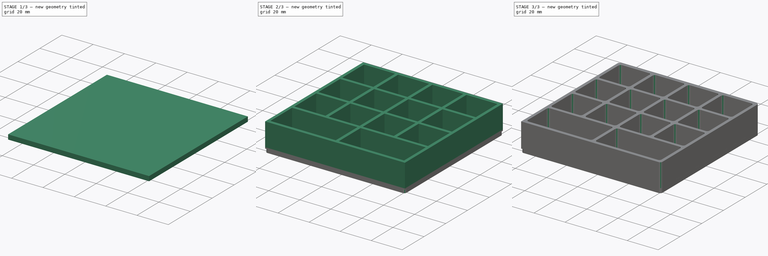
[diagram: build sequence overview — one tinted view per stage of 3, left to right]
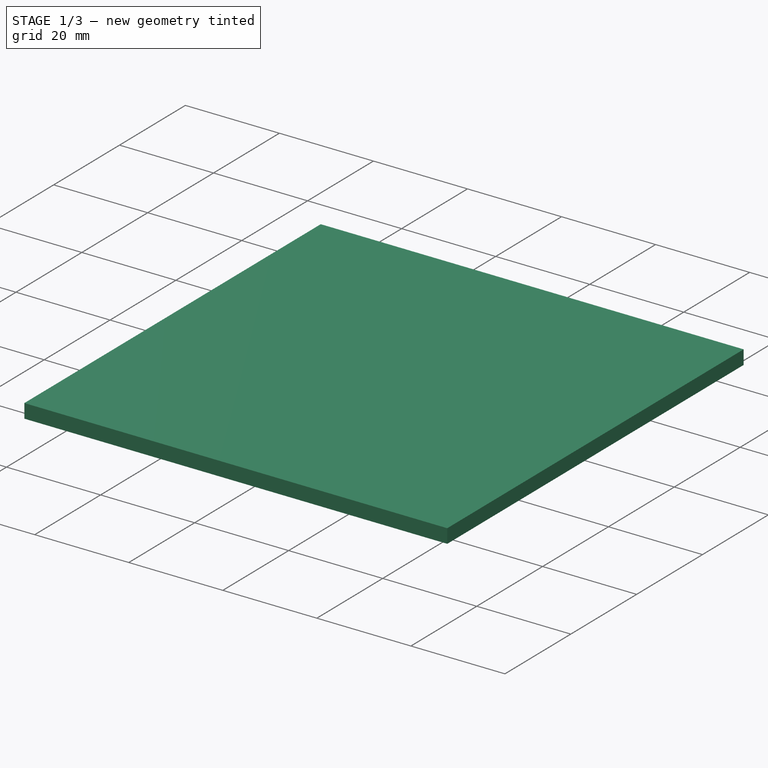
[diagram: stage 1 of 3 — iso view after this stage's code; geometry added in this stage tinted green]
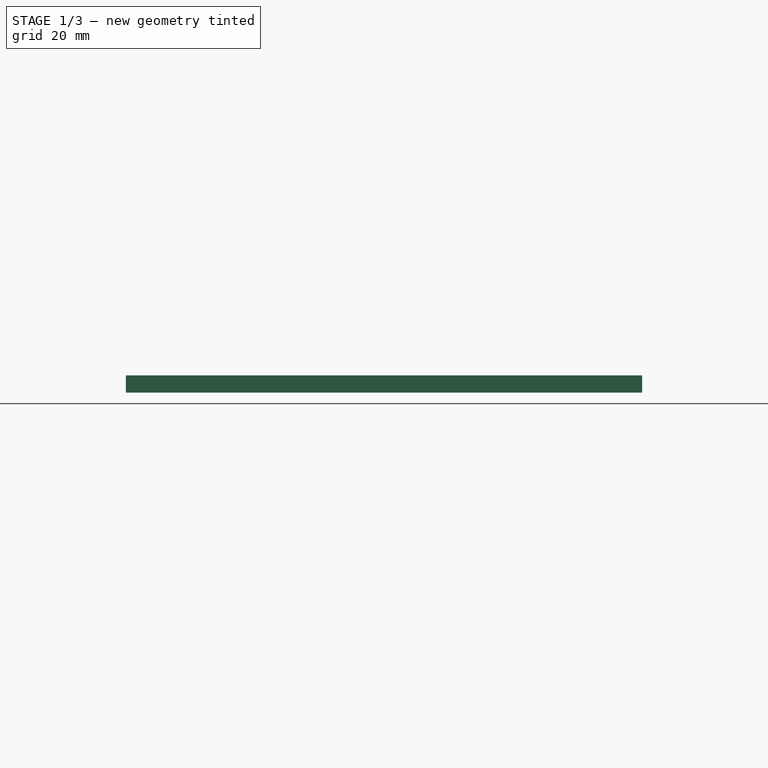
[diagram: stage 1 of 3 — front view after this stage's code; geometry added in this stage tinted green]
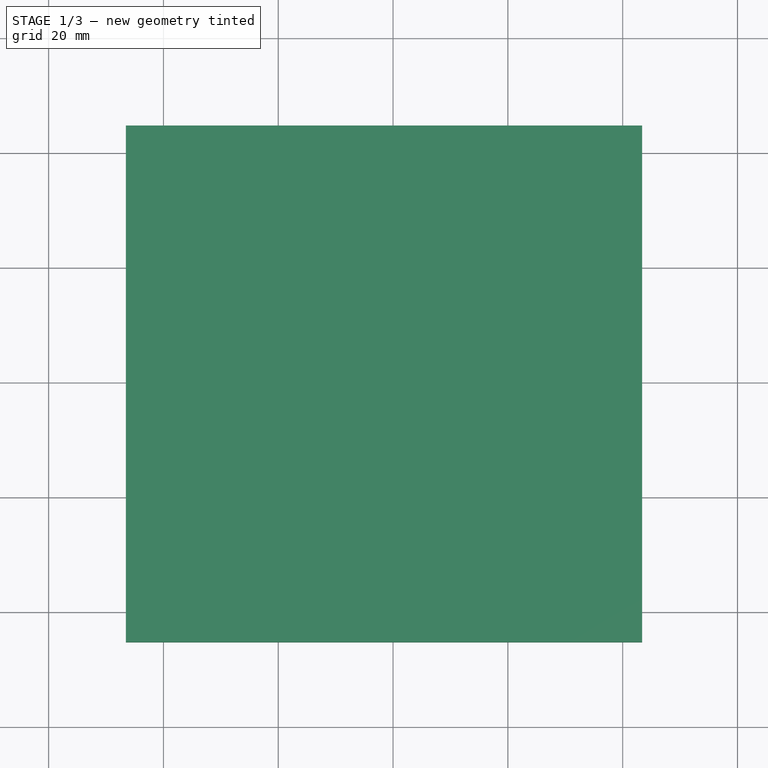
[diagram: stage 1 of 3 — top view after this stage's code; geometry added in this stage tinted green]
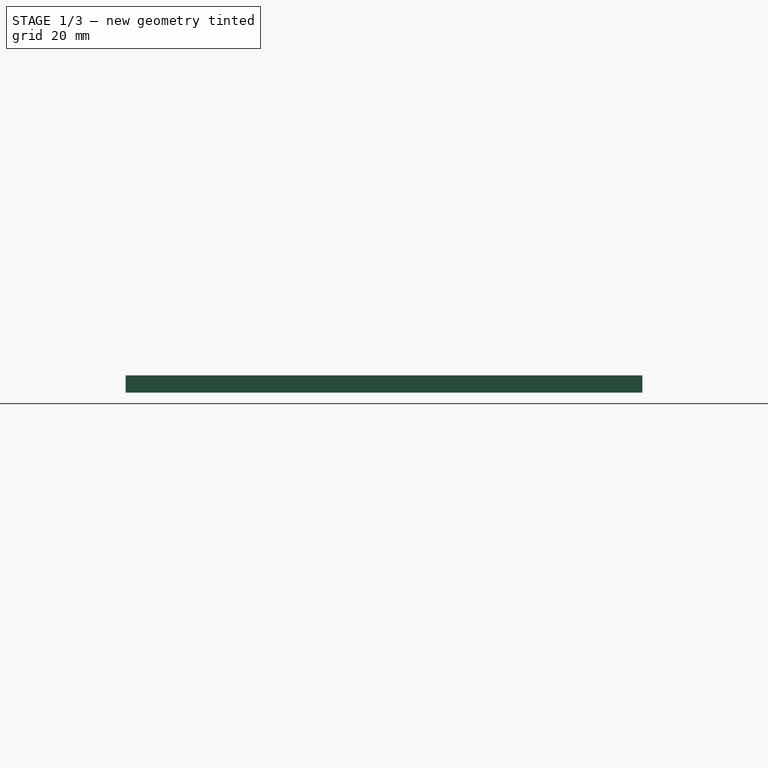
[diagram: stage 1 of 3 — right view after this stage's code; geometry added in this stage tinted green]
FCSTD DOCUMENT  (FreeCAD 0.19R24267 +99 (Git))
Label: 原件盒
License: All rights reserved
LicenseURL: http://en.wikipedia.org/wiki/All_rights_reserved
objects: Sketcher::SketchObject×4, PartDesign::Pad×4, PartDesign::Fillet×3, PartDesign::Body×2
note: 20 computed .brp shape members not serialized (recipe doc carries the construction recipe); baked Part::Feature solids carry a one-line shape summary decoded from their .brp

FEATURE [Sketcher::SketchObject] Sketch002
  FullyConstrained = false
  MapMode = 5
  Support = -> [XY_Plane001]
  sketch-geometry (4):
    g0: LineSegment StartX=-46.5431 StartY=44.7849 StartZ=0 EndX=43.3915 EndY=44.7849 EndZ=0
    g1: LineSegment StartX=43.3915 StartY=44.7849 StartZ=0 EndX=43.3915 EndY=-45.2323 EndZ=0
    g2: LineSegment StartX=43.3915 StartY=-45.2323 StartZ=0 EndX=-46.5431 EndY=-45.2323 EndZ=0
    g3: LineSegment StartX=-46.5431 StartY=-45.2323 StartZ=0 EndX=-46.5431 EndY=44.7849 EndZ=0
  constraints (8):
    c: Coincident(g0,g1)
    c: Coincident(g1,g2)
    c: Coincident(g2,g3)
    c: Coincident(g3,g0)
    c: Horizontal(g0)
    c: Horizontal(g2)
    c: Vertical(g1)
    c: Vertical(g3)
FEATURE [PartDesign::Pad] Pad002
  Direction = (1,1,1)
  Length = 1
  Length2 = 100
  Profile = -> Sketch002
  Reversed = true
  Type = 0
FEATURE [Sketcher::SketchObject] Sketch003
  ExternalGeometry = -> [Pad002]
  FullyConstrained = false
  MapMode = 5
  Placement = pos=(0,0,-1) rot=(1,0,0;3.14159rad)
  Support = -> [Pad002]
  sketch-geometry (33):
    g0: LineSegment StartX=-46.5431 StartY=45.2323 StartZ=0 EndX=43.3915 EndY=45.2323 EndZ=0
    g1: LineSegment StartX=43.3915 StartY=45.2323 StartZ=0 EndX=43.3915 EndY=-44.7849 EndZ=0
    g2: LineSegment StartX=43.3915 StartY=-44.7849 StartZ=0 EndX=-46.5431 EndY=-44.7849 EndZ=0
    g3: LineSegment StartX=-46.5431 StartY=-44.7849 StartZ=0 EndX=-46.5431 EndY=45.2323 EndZ=0
    g4: Circle CenterX=-23.6071 CenterY=33.2359 CenterZ=0 NormalX=0 NormalY=0 NormalZ=1 AngleXU=0 Radius=5.5
    g5: Circle CenterX=20.3929 CenterY=33.2359 CenterZ=0 NormalX=0 NormalY=0 NormalZ=1 AngleXU=0 Radius=5.5
    g6: Circle CenterX=-34.5313 CenterY=11.2359 CenterZ=0 NormalX=0 NormalY=0 NormalZ=1 AngleXU=0 Radius=5.5
    g7: Circle CenterX=-12.5313 CenterY=11.2359 CenterZ=0 NormalX=0 NormalY=0 NormalZ=1 AngleXU=0 Radius=5.5
    g8: Circle CenterX=9.46874 CenterY=11.2359 CenterZ=0 NormalX=0 NormalY=0 NormalZ=1 AngleXU=0 Radius=5.5
    g9: Circle CenterX=31.4687 CenterY=11.2359 CenterZ=0 NormalX=0 NormalY=0 NormalZ=1 AngleXU=0 Radius=5.5
    g10: LineSegment StartX=-34.5313 StartY=11.2359 StartZ=0 EndX=-12.5313 EndY=11.2359 EndZ=0
    g11: LineSegment StartX=-12.5313 StartY=11.2359 StartZ=0 EndX=9.46874 EndY=11.2359 EndZ=0
    g12: LineSegment StartX=9.46874 StartY=11.2359 StartZ=0 EndX=31.4687 EndY=11.2359 EndZ=0
    g13: LineSegment StartX=20.3929 StartY=11.2359 StartZ=0 EndX=20.3929 EndY=33.2359 EndZ=0
    g14: LineSegment StartX=-23.6071 StartY=11.2359 StartZ=0 EndX=-23.6071 EndY=33.2359 EndZ=0
    g15: LineSegment StartX=-23.6071 StartY=33.2359 StartZ=0 EndX=20.3929 EndY=33.2359 EndZ=0
    g16: Circle CenterX=-34.5313 CenterY=-10.7641 CenterZ=0 NormalX=0 NormalY=0 NormalZ=1 AngleXU=0 Radius=5.5
    g17: Circle CenterX=-12.5313 CenterY=-10.7641 CenterZ=0 NormalX=0 NormalY=0 NormalZ=1 AngleXU=0 Radius=5.5
    g18: Circle CenterX=9.44414 CenterY=-10.7641 CenterZ=0 NormalX=0 NormalY=0 NormalZ=1 AngleXU=0 Radius=5.5
    g19: Circle CenterX=31.4195 CenterY=-10.7641 CenterZ=0 NormalX=0 NormalY=0 NormalZ=1 AngleXU=0 Radius=5.5
    g20: LineSegment StartX=-34.5313 StartY=-10.7641 StartZ=0 EndX=-12.5313 EndY=-10.7641 EndZ=0
    g21: LineSegment StartX=-12.5313 StartY=-10.7641 StartZ=0 EndX=9.44414 EndY=-10.7641 EndZ=0
    g22: LineSegment StartX=9.44414 StartY=-10.7641 StartZ=0 EndX=31.4195 EndY=-10.7641 EndZ=0
    g23: Circle CenterX=-34.5313 CenterY=-32.7641 CenterZ=0 NormalX=0 NormalY=0 NormalZ=1 AngleXU=0 Radius=5.5
    g24: Circle CenterX=-12.5313 CenterY=-32.7641 CenterZ=0 NormalX=0 NormalY=0 NormalZ=1 AngleXU=0 Radius=5.5
    g25: Circle CenterX=9.40967 CenterY=-32.7641 CenterZ=0 NormalX=0 NormalY=0 NormalZ=1 AngleXU=0 Radius=5.5
    g26: Circle CenterX=31.3506 CenterY=-32.7641 CenterZ=0 NormalX=0 NormalY=0 NormalZ=1 AngleXU=0 Radius=5.5
    g27: LineSegment StartX=-34.5313 StartY=-32.7641 StartZ=0 EndX=-12.5313 EndY=-32.7641 EndZ=0
    g28: LineSegment StartX=-12.5313 StartY=-32.7641 StartZ=0 EndX=9.40967 EndY=-32.7641 EndZ=0
    g29: LineSegment StartX=9.40967 StartY=-32.7641 StartZ=0 EndX=31.3506 EndY=-32.7641 EndZ=0
    g30: LineSegment StartX=-12.5313 StartY=11.2359 StartZ=0 EndX=-12.5313 EndY=-10.7641 EndZ=0
    g31: LineSegment StartX=-12.5313 StartY=-10.7641 StartZ=0 EndX=-12.3652 EndY=-11.3921 EndZ=0
    g32: LineSegment StartX=-34.5313 StartY=-10.7641 StartZ=0 EndX=-34.5313 EndY=-32.7641 EndZ=0
  constraints (66):
    c: Coincident(g0,g1)
    c: Coincident(g1,g2)
    c: Coincident(g2,g3)
    c: Coincident(g3,g0)
    c: Horizontal(g2)
    c: Vertical(g1)
    c: Coincident(g0,g-4)
    c: Coincident(g0,g-4)
    c: Coincident(g2,g-3)
    c: Diameter(g4) = 11
    c: Equal(g4,g5) = 11
    c: Equal(g4,g6) = 11
    c: Coincident(g10,g6)
    c: Coincident(g10,g7)
    c: Horizontal(g10)
    c: Coincident(g10,g11)
    c: Coincident(g11,g8)
    c: Coincident(g11,g12)
    c: Coincident(g12,g9)
    c: Horizontal(g12)
    c: PointOnObject(g13,g12)
    c: Coincident(g13,g5)
    c: Vertical(g13)
    c: PointOnObject(g14,g10)
    c: Coincident(g14,g4)
    c: Vertical(g14)
    c: Horizontal(g11)
    c: Equal(g10,g14)
    c: Equal(g14,g11)
    c: Equal(g11,g12)
    c: Equal(g12,g13)
    c: Distance(g10) = 22
    c: Coincident(g15,g4)
    c: Coincident(g15,g5)
    c: Distance(g15) = 44
    c: Coincident(g20,g16)
    c: Coincident(g20,g17)
    c: Horizontal(g20)
    c: Coincident(g20,g21)
    c: Coincident(g21,g18)
    c: Coincident(g21,g22)
    c: Coincident(g22,g19)
    c: Horizontal(g22)
    c: Horizontal(g21)
    c: Equal(g21,g22)
    c: Equal(g10,g20) = 22
    c: Coincident(g27,g23)
    c: Coincident(g27,g24)
    c: Horizontal(g27)
    c: Coincident(g27,g28)
    c: Coincident(g28,g25)
    c: Coincident(g28,g29)
    c: Coincident(g29,g26)
    c: Horizontal(g29)
    c: Horizontal(g28)
    c: Equal(g28,g29)
    c: Coincident(g30,g7)
    c: Coincident(g30,g17)
    c: Vertical(g30)
    c: Coincident(g30,g31)
    c: Vertical(g16,g23)
    c: Equal(g27,g20)
    c: Coincident(g32,g16)
    c: Coincident(g32,g23)
    c: Equal(g32,g30)
    c: Equal(g30,g10)
FEATURE [PartDesign::Pad] Pad003
  BaseFeature = -> Pad002
  Direction = (1,1,1)
  Length = 2
  Length2 = 100
  Profile = -> Sketch003
  Type = 0
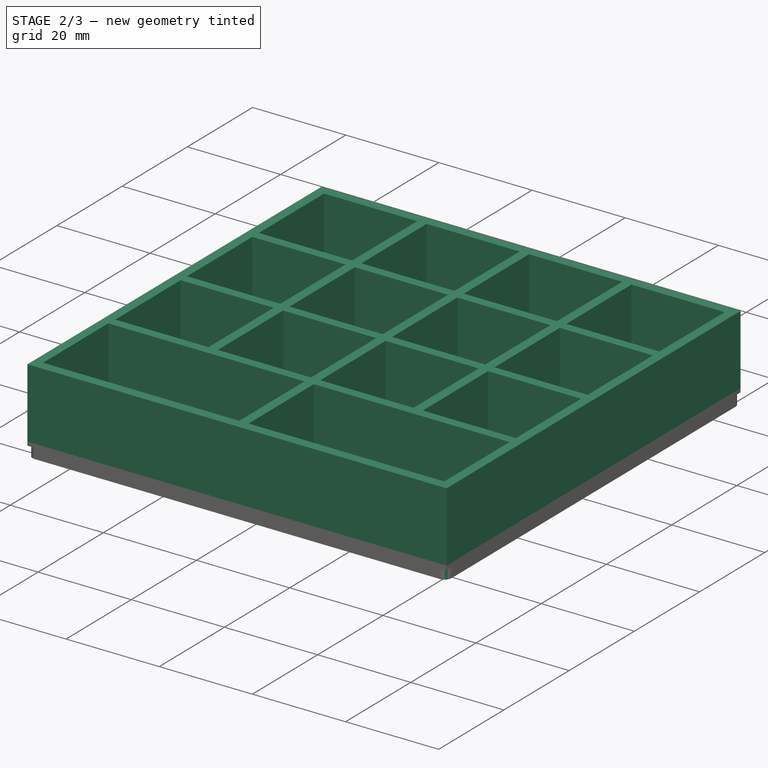
[diagram: stage 2 of 3 — iso view after this stage's code; geometry added in this stage tinted green]
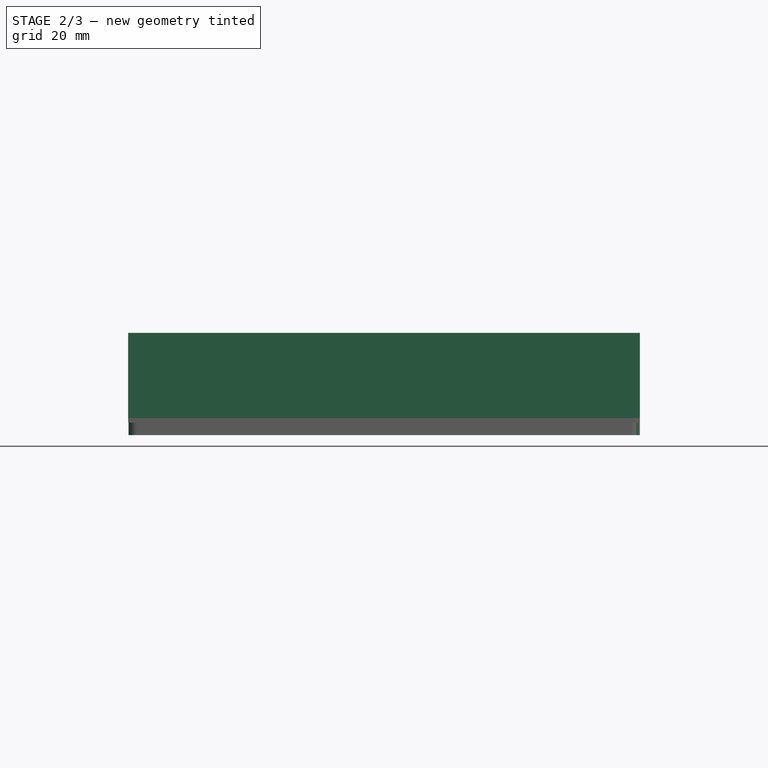
[diagram: stage 2 of 3 — front view after this stage's code; geometry added in this stage tinted green]
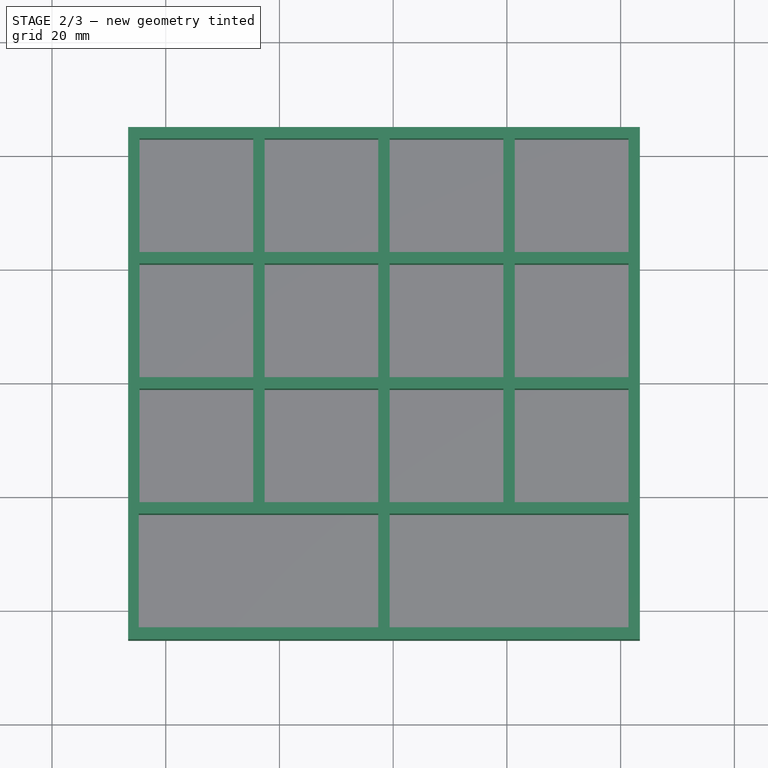
[diagram: stage 2 of 3 — top view after this stage's code; geometry added in this stage tinted green]
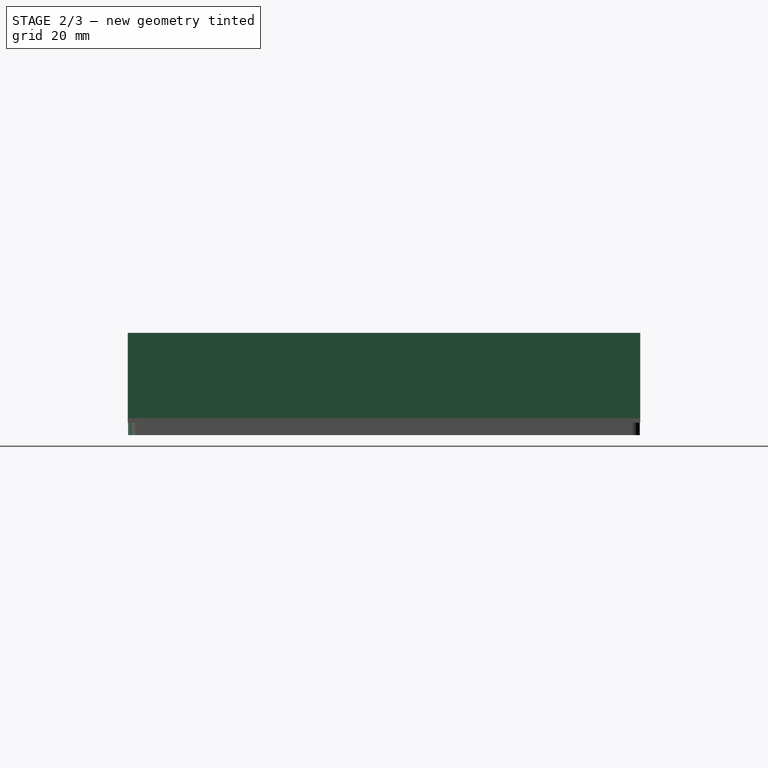
[diagram: stage 2 of 3 — right view after this stage's code; geometry added in this stage tinted green]
FEATURE [Sketcher::SketchObject] Sketch
  FullyConstrained = false
  MapMode = 5
  Support = -> [XY_Plane]
  sketch-geometry (76):
    g0: LineSegment StartX=-44.6175 StartY=42.8492 StartZ=0 EndX=-24.6175 EndY=42.8492 EndZ=0
    g1: LineSegment StartX=-24.6175 StartY=42.8492 StartZ=0 EndX=-24.6175 EndY=22.8492 EndZ=0
    g2: LineSegment StartX=-24.6175 StartY=22.8492 StartZ=0 EndX=-44.6175 EndY=22.8492 EndZ=0
    g3: LineSegment StartX=-44.6175 StartY=22.8492 StartZ=0 EndX=-44.6175 EndY=42.8492 EndZ=0
    g4: LineSegment StartX=-44.6175 StartY=20.8492 StartZ=0 EndX=-24.6175 EndY=20.8492 EndZ=0
    g5: LineSegment StartX=-24.6175 StartY=20.8492 StartZ=0 EndX=-24.6175 EndY=0.849179 EndZ=0
    g6: LineSegment StartX=-24.6175 StartY=0.849179 StartZ=0 EndX=-44.6175 EndY=0.849179 EndZ=0
    g7: LineSegment StartX=-44.6175 StartY=0.849179 StartZ=0 EndX=-44.6175 EndY=20.8492 EndZ=0
    g8: LineSegment StartX=-22.6175 StartY=42.8492 StartZ=0 EndX=-2.61746 EndY=42.8492 EndZ=0
    g9: LineSegment StartX=-2.61746 StartY=42.8492 StartZ=0 EndX=-2.61746 EndY=22.8492 EndZ=0
    g10: LineSegment StartX=-2.61746 StartY=22.8492 StartZ=0 EndX=-22.6175 EndY=22.8492 EndZ=0
    g11: LineSegment StartX=-22.6175 StartY=22.8492 StartZ=0 EndX=-22.6175 EndY=42.8492 EndZ=0
    g12: LineSegment StartX=-22.6175 StartY=20.8492 StartZ=0 EndX=-2.61746 EndY=20.8492 EndZ=0
    g13: LineSegment StartX=-2.61746 StartY=20.8492 StartZ=0 EndX=-2.61746 EndY=0.849179 EndZ=0
    g14: LineSegment StartX=-2.61746 StartY=0.849179 StartZ=0 EndX=-22.6175 EndY=0.849179 EndZ=0
    g15: LineSegment StartX=-22.6175 StartY=0.849179 StartZ=0 EndX=-22.6175 EndY=20.8492 EndZ=0
    g16: LineSegment StartX=-24.6175 StartY=22.8492 StartZ=0 EndX=-22.6175 EndY=22.8492 EndZ=0
    g17: LineSegment StartX=-22.6175 StartY=22.8492 StartZ=0 EndX=-22.6175 EndY=20.8492 EndZ=0
    g18: LineSegment StartX=-22.6175 StartY=20.8492 StartZ=0 EndX=-24.6175 EndY=20.8492 EndZ=0
    g19: LineSegment StartX=-24.6175 StartY=20.8492 StartZ=0 EndX=-24.6175 EndY=22.8492 EndZ=0
    g20: LineSegment StartX=-0.617456 StartY=42.8492 StartZ=0 EndX=19.3825 EndY=42.8492 EndZ=0
    g21: LineSegment StartX=19.3825 StartY=42.8492 StartZ=0 EndX=19.3825 EndY=22.8492 EndZ=0
    g22: LineSegment StartX=19.3825 StartY=22.8492 StartZ=0 EndX=-0.617456 EndY=22.8492 EndZ=0
    g23: LineSegment StartX=-0.617456 StartY=22.8492 StartZ=0 EndX=-0.617456 EndY=42.8492 EndZ=0
    g24: LineSegment StartX=-0.617456 StartY=20.8492 StartZ=0 EndX=19.3825 EndY=20.8492 EndZ=0
    g25: LineSegment StartX=19.3825 StartY=20.8492 StartZ=0 EndX=19.3825 EndY=0.849179 EndZ=0
    g26: LineSegment StartX=19.3825 StartY=0.849179 StartZ=0 EndX=-0.617456 EndY=0.849179 EndZ=0
    g27: LineSegment StartX=-0.617456 StartY=0.849179 StartZ=0 EndX=-0.617456 EndY=20.8492 EndZ=0
    g28: LineSegment StartX=21.3825 StartY=42.8492 StartZ=0 EndX=41.3825 EndY=42.8492 EndZ=0
    g29: LineSegment StartX=41.3825 StartY=42.8492 StartZ=0 EndX=41.3825 EndY=22.8492 EndZ=0
    g30: LineSegment StartX=41.3825 StartY=22.8492 StartZ=0 EndX=21.3825 EndY=22.8492 EndZ=0
    g31: LineSegment StartX=21.3825 StartY=22.8492 StartZ=0 EndX=21.3825 EndY=42.8492 EndZ=0
    g32: LineSegment StartX=21.3825 StartY=20.8492 StartZ=0 EndX=41.3825 EndY=20.8492 EndZ=0
    g33: LineSegment StartX=41.3825 StartY=20.8492 StartZ=0 EndX=41.3825 EndY=0.849179 EndZ=0
    g34: LineSegment StartX=41.3825 StartY=0.849179 StartZ=0 EndX=21.3825 EndY=0.849179 EndZ=0
    g35: LineSegment StartX=21.3825 StartY=0.849179 StartZ=0 EndX=21.3825 EndY=20.8492 EndZ=0
    g36: LineSegment StartX=19.3825 StartY=22.8492 StartZ=0 EndX=21.3825 EndY=22.8492 EndZ=0
    g37: LineSegment StartX=21.3825 StartY=22.8492 StartZ=0 EndX=21.3825 EndY=20.8492 EndZ=0
    g38: LineSegment StartX=21.3825 StartY=20.8492 StartZ=0 EndX=19.3825 EndY=20.8492 EndZ=0
    g39: LineSegment StartX=19.3825 StartY=20.8492 StartZ=0 EndX=19.3825 EndY=22.8492 EndZ=0
    g40: LineSegment StartX=-2.61746 StartY=22.8492 StartZ=0 EndX=-0.617456 EndY=22.8492 EndZ=0
    g41: LineSegment StartX=-44.6175 StartY=-1.15082 StartZ=0 EndX=-24.6175 EndY=-1.15082 EndZ=0
    g42: LineSegment StartX=-24.6175 StartY=-1.15082 StartZ=0 EndX=-24.6175 EndY=-21.1508 EndZ=0
    g43: LineSegment StartX=-24.6175 StartY=-21.1508 StartZ=0 EndX=-44.6175 EndY=-21.1508 EndZ=0
    g44: LineSegment StartX=-44.6175 StartY=-21.1508 StartZ=0 EndX=-44.6175 EndY=-1.15082 EndZ=0
    g45: LineSegment StartX=-22.6175 StartY=-1.15082 StartZ=0 EndX=-2.61746 EndY=-1.15082 EndZ=0
    g46: LineSegment StartX=-2.61746 StartY=-1.15082 StartZ=0 EndX=-2.61746 EndY=-21.1508 EndZ=0
    g47: LineSegment StartX=-2.61746 StartY=-21.1508 StartZ=0 EndX=-22.6175 EndY=-21.1508 EndZ=0
    g48: LineSegment StartX=-22.6175 StartY=-21.1508 StartZ=0 EndX=-22.6175 EndY=-1.15082 EndZ=0
    g49: LineSegment StartX=-24.6175 StartY=-21.1508 StartZ=0 EndX=-22.6175 EndY=-21.1508 EndZ=0
    g50: LineSegment StartX=-0.617456 StartY=-1.15082 StartZ=0 EndX=19.3825 EndY=-1.15082 EndZ=0
    g51: LineSegment StartX=19.3825 StartY=-1.15082 StartZ=0 EndX=19.3825 EndY=-21.1508 EndZ=0
    g52: LineSegment StartX=19.3825 StartY=-21.1508 StartZ=0 EndX=-0.617456 EndY=-21.1508 EndZ=0
    g53: LineSegment StartX=-0.617456 StartY=-21.1508 StartZ=0 EndX=-0.617456 EndY=-1.15082 EndZ=0
    g54: LineSegment StartX=21.3825 StartY=-1.15082 StartZ=0 EndX=41.3825 EndY=-1.15082 EndZ=0
    g55: LineSegment StartX=41.3825 StartY=-1.15082 StartZ=0 EndX=41.3825 EndY=-21.1508 EndZ=0
    g56: LineSegment StartX=41.3825 StartY=-21.1508 StartZ=0 EndX=21.3825 EndY=-21.1508 EndZ=0
    g57: LineSegment StartX=21.3825 StartY=-21.1508 StartZ=0 EndX=21.3825 EndY=-1.15082 EndZ=0
    g58: LineSegment StartX=19.3825 StartY=-21.1508 StartZ=0 EndX=21.3825 EndY=-21.1508 EndZ=0
    g59: LineSegment StartX=21.3825 StartY=-21.1508 StartZ=0 EndX=21.3825 EndY=-23.2642 EndZ=0
    g60: LineSegment StartX=-2.61746 StartY=-21.1508 StartZ=0 EndX=-0.617456 EndY=-21.1508 EndZ=0
    g61: LineSegment StartX=-2.61746 StartY=0.849179 StartZ=0 EndX=-2.61746 EndY=-1.15082 EndZ=0
    g62: LineSegment StartX=-46.6175 StartY=44.8492 StartZ=0 EndX=43.3825 EndY=44.8492 EndZ=0
    g63: LineSegment StartX=43.3825 StartY=44.8492 StartZ=0 EndX=43.3825 EndY=-45.2642 EndZ=0
    g64: LineSegment StartX=43.3825 StartY=-45.2642 StartZ=0 EndX=-46.6175 EndY=-45.2642 EndZ=0
    g65: LineSegment StartX=-46.6175 StartY=-45.2642 StartZ=0 EndX=-46.6175 EndY=44.8492 EndZ=0
    g66: LineSegment StartX=-44.7338 StartY=-23.1508 StartZ=0 EndX=-2.61746 EndY=-23.1508 EndZ=0
    g67: LineSegment StartX=-2.61746 StartY=-23.1508 StartZ=0 EndX=-2.61746 EndY=-43.1508 EndZ=0
    g68: LineSegment StartX=-2.61746 StartY=-43.1508 StartZ=0 EndX=-44.7338 EndY=-43.1508 EndZ=0
    g69: LineSegment StartX=-44.7338 StartY=-43.1508 StartZ=0 EndX=-44.7338 EndY=-23.1508 EndZ=0
    g70: LineSegment StartX=-0.617456 StartY=-23.1508 StartZ=0 EndX=41.3825 EndY=-23.1508 EndZ=0
    g71: LineSegment StartX=41.3825 StartY=-23.1508 StartZ=0 EndX=41.3825 EndY=-43.1508 EndZ=0
    g72: LineSegment StartX=41.3825 StartY=-43.1508 StartZ=0 EndX=-0.617456 EndY=-43.1508 EndZ=0
    g73: LineSegment StartX=-0.617456 StartY=-43.1508 StartZ=0 EndX=-0.617456 EndY=-23.1508 EndZ=0
    g74: LineSegment StartX=-2.61746 StartY=-23.1508 StartZ=0 EndX=-0.617456 EndY=-23.1508 EndZ=0
    g75: LineSegment StartX=-2.61746 StartY=-21.1508 StartZ=0 EndX=-2.61746 EndY=-23.1508 EndZ=0
  constraints (208):
    c: Coincident(g0,g1)
    c: Coincident(g1,g2)
    c: Coincident(g2,g3)
    c: Coincident(g3,g0)
    c: Horizontal(g0)
    c: Horizontal(g2)
    c: Vertical(g1)
    c: Vertical(g3)
    c: Equal(g0,g3)
    c: Distance(g0) = 20
    c: Coincident(g4,g5)
    c: Coincident(g5,g6)
    c: Coincident(g6,g7)
    c: Coincident(g7,g4)
    c: Horizontal(g4)
    c: Horizontal(g6)
    c: Vertical(g5)
    c: Vertical(g7)
    c: Equal(g4,g7)
    c: Equal(g0,g4) = 20
    c: Coincident(g8,g9)
    c: Coincident(g9,g10)
    c: Coincident(g10,g11)
    c: Coincident(g11,g8)
    c: Horizontal(g8)
    c: Horizontal(g10)
    c: Vertical(g9)
    c: Vertical(g11)
    c: Equal(g8,g11)
    c: Equal(g0,g8) = 20
    c: Coincident(g12,g13)
    c: Coincident(g13,g14)
    c: Coincident(g14,g15)
    c: Coincident(g15,g12)
    c: Horizontal(g12)
    c: Horizontal(g14)
    c: Vertical(g13)
    c: Vertical(g15)
    c: Equal(g12,g15)
    c: Equal(g8,g12) = 20
    c: Coincident(g16,g17)
    c: Coincident(g17,g18)
    c: Coincident(g18,g19)
    c: Coincident(g19,g16)
    c: Horizontal(g16)
    c: Horizontal(g18)
    c: Vertical(g17)
    c: Vertical(g19)
    c: Coincident(g16,g1)
    c: Coincident(g17,g12)
    c: Coincident(g10,g16)
    c: Coincident(g4,g18)
    c: Equal(g16,g19)
    c: Distance(g16) = 2
    c: Coincident(g20,g21)
    c: Coincident(g21,g22)
    c: Coincident(g22,g23)
    c: Coincident(g23,g20)
    c: Horizontal(g20)
    c: Horizontal(g22)
    c: Vertical(g21)
    c: Vertical(g23)
    c: Equal(g20,g23)
    c: Equal(g0,g20) = 20
    c: Coincident(g24,g25)
    c: Coincident(g25,g26)
    c: Coincident(g26,g27)
    c: Coincident(g27,g24)
    c: Horizontal(g24)
    c: Horizontal(g26)
    c: Vertical(g25)
    c: Vertical(g27)
    c: Equal(g24,g27)
    c: Equal(g20,g24) = 20
    c: Coincident(g28,g29)
    c: Coincident(g29,g30)
    c: Coincident(g30,g31)
    c: Coincident(g31,g28)
    c: Horizontal(g28)
    c: Horizontal(g30)
    c: Vertical(g29)
    c: Vertical(g31)
    c: Equal(g28,g31)
    c: Equal(g20,g28) = 20
    c: Coincident(g32,g33)
    c: Coincident(g33,g34)
    c: Coincident(g34,g35)
    c: Coincident(g35,g32)
    c: Horizontal(g32)
    c: Horizontal(g34)
    c: Vertical(g33)
    c: Vertical(g35)
    c: Equal(g32,g35)
    c: Equal(g28,g32) = 20
    c: Coincident(g36,g37)
    c: Coincident(g37,g38)
    c: Coincident(g38,g39)
    c: Coincident(g39,g36)
    c: Horizontal(g36)
    c: Horizontal(g38)
    c: Vertical(g37)
    c: Vertical(g39)
    c: Coincident(g36,g21)
    c: Coincident(g37,g32)
    c: Coincident(g30,g36)
    c: Coincident(g24,g38)
    c: Equal(g36,g39)
    c: Equal(g16,g36) = 2
    c: Horizontal(g40)
    c: Coincident(g40,g22)
    c: Coincident(g40,g9)
    c: Distance(g40) = 2
    c: Coincident(g41,g42)
    c: Coincident(g42,g43)
    c: Coincident(g43,g44)
    c: Coincident(g44,g41)
    c: Horizontal(g41)
    c: Horizontal(g43)
    c: Vertical(g42)
    c: Vertical(g44)
    c: Equal(g41,g44)
    c: Equal(g0,g41) = 20
    c: Coincident(g45,g46)
    c: Coincident(g46,g47)
    c: Coincident(g47,g48)
    c: Coincident(g48,g45)
    c: Horizontal(g45)
    c: Horizontal(g47)
    c: Vertical(g46)
    c: Vertical(g48)
    c: Equal(g45,g48)
    c: Equal(g41,g45) = 20
    c: Horizontal(g49)
    c: Coincident(g49,g42)
    c: Coincident(g47,g49)
    c: Equal(g16,g49) = 2
    c: Coincident(g50,g51)
    c: Coincident(g51,g52)
    c: Coincident(g52,g53)
    c: Coincident(g53,g50)
    c: Horizontal(g50)
    c: Horizontal(g52)
    c: Vertical(g51)
    c: Vertical(g53)
    c: Equal(g50,g53)
    c: Equal(g41,g50) = 20
    c: Coincident(g54,g55)
    c: Coincident(g55,g56)
    c: Coincident(g56,g57)
    c: Coincident(g57,g54)
    c: Horizontal(g54)
    c: Horizontal(g56)
    c: Vertical(g55)
    c: Vertical(g57)
    c: Equal(g54,g57)
    c: Equal(g50,g54) = 20
    c: Coincident(g58,g59)
    c: Horizontal(g58)
    c: Vertical(g59)
    c: Coincident(g58,g51)
    c: Coincident(g56,g58)
    c: Equal(g49,g58) = 2
    c: Horizontal(g60)
    c: Coincident(g60,g52)
    c: Coincident(g60,g46)
    c: Equal(g40,g60) = 2
    c: Coincident(g61,g13)
    c: Coincident(g61,g45)
    c: Vertical(g61)
    c: Distance(g61) = 2
    c: Coincident(g62,g63)
    c: Coincident(g63,g64)
    c: Coincident(g64,g65)
    c: Coincident(g65,g62)
    c: Horizontal(g62)
    c: Horizontal(g64)
    c: Vertical(g63)
    c: Vertical(g65)
    c: Distance(g0,g62) = 2
    c: Coincident(g66,g67)
    c: Coincident(g67,g68)
    c: Coincident(g68,g69)
    c: Coincident(g69,g66)
    c: Horizontal(g66)
    c: Horizontal(g68)
    c: Vertical(g67)
    c: Vertical(g69)
    c: Equal(g69,g44)
    c: Coincident(g70,g71)
    c: Coincident(g71,g72)
    c: Coincident(g72,g73)
    c: Coincident(g73,g70)
    c: Horizontal(g70)
    c: Horizontal(g72)
    c: Vertical(g71)
    c: Vertical(g73)
    c: Coincident(g74,g66)
    c: Coincident(g74,g70)
    c: Coincident(g75,g46)
    c: Coincident(g75,g66)
    c: Horizontal(g74)
    c: Vertical(g75)
    c: Equal(g75,g74)
    c: Equal(g74,g61)
    c: Distance(g43,g65) = 2
    c: Distance(g28,g63) = 2
    c: Vertical(g70,g55)
    c: Horizontal(g67,g72)
FEATURE [PartDesign::Pad] Pad
  Direction = (1,1,1)
  Length = 15
  Length2 = 100
  Profile = -> Sketch
  Type = 0
FEATURE [Sketcher::SketchObject] Sketch001
  ExternalGeometry = -> [Pad]
  FullyConstrained = true
  MapMode = 5
  Placement = pos=(0,0,0) rot=(1,0,0;3.14159rad)
  Support = -> [Pad]
  sketch-geometry (4):
    g0: LineSegment StartX=-46.6175 StartY=45.2642 StartZ=0 EndX=43.3825 EndY=45.2642 EndZ=0
    g1: LineSegment StartX=43.3825 StartY=45.2642 StartZ=0 EndX=43.3825 EndY=-44.8492 EndZ=0
    g2: LineSegment StartX=43.3825 StartY=-44.8492 StartZ=0 EndX=-46.6175 EndY=-44.8492 EndZ=0
    g3: LineSegment StartX=-46.6175 StartY=-44.8492 StartZ=0 EndX=-46.6175 EndY=45.2642 EndZ=0
  constraints (10):
    c: Coincident(g0,g1)
    c: Coincident(g1,g2)
    c: Coincident(g2,g3)
    c: Coincident(g3,g0)
    c: Horizontal(g0)
    c: Horizontal(g2)
    c: Vertical(g1)
    c: Vertical(g3)
    c: Coincident(g0,g-3)
    c: Coincident(g1,g-4)
FEATURE [PartDesign::Pad] Pad001
  BaseFeature = -> Pad
  Direction = (1,1,1)
  Length = 0.8
  Length2 = 100
  Profile = -> Sketch001
  Type = 0
FEATURE [PartDesign::Body] Body
  Group = -> [Sketch,Pad,Sketch001,Pad001,Fillet,Fillet001]
  Origin = -> Origin
  Tip = -> Fillet001
FEATURE [PartDesign::Fillet] Fillet002
  Base = -> Pad003 [Edge16,Edge13,Edge12,Edge18]
  BaseFeature = -> Pad003
  Radius = 1.5
  SupportTransform = false
FEATURE [PartDesign::Body] Body001
  Group = -> [Sketch002,Pad002,Sketch003,Pad003,Fillet002]
  Origin = -> Origin001
  Placement = pos=(-3.2,0,-3.7) rot=(0,1,0;3.14159rad)
  Tip = -> Fillet002
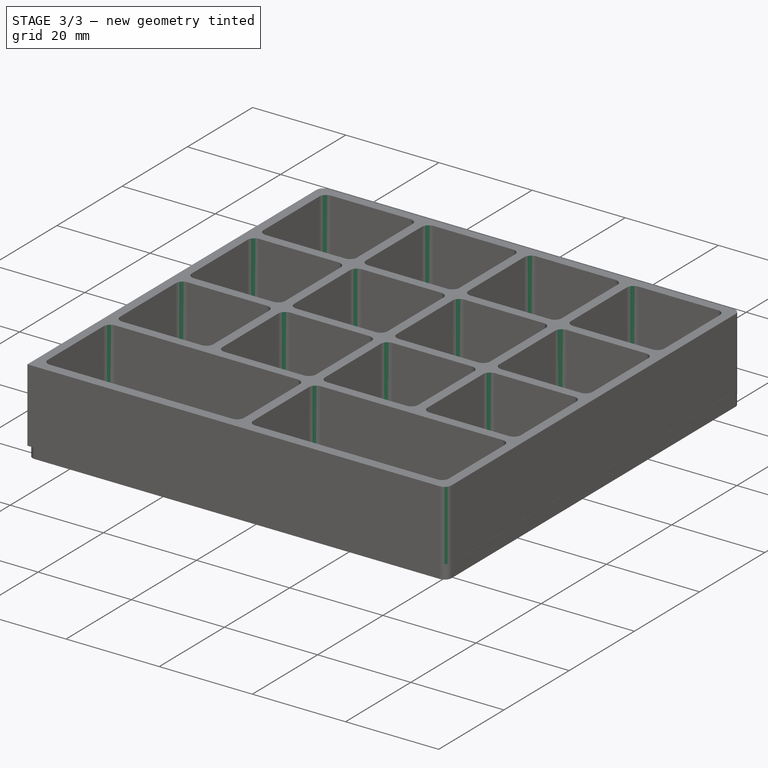
[diagram: stage 3 of 3 — iso view after this stage's code; geometry added in this stage tinted green]
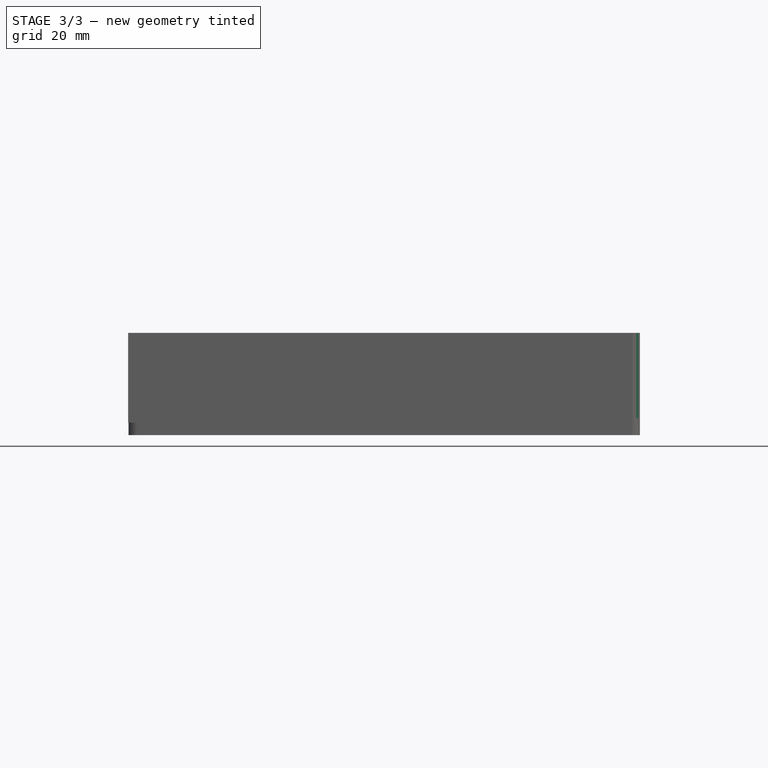
[diagram: stage 3 of 3 — front view after this stage's code; geometry added in this stage tinted green]
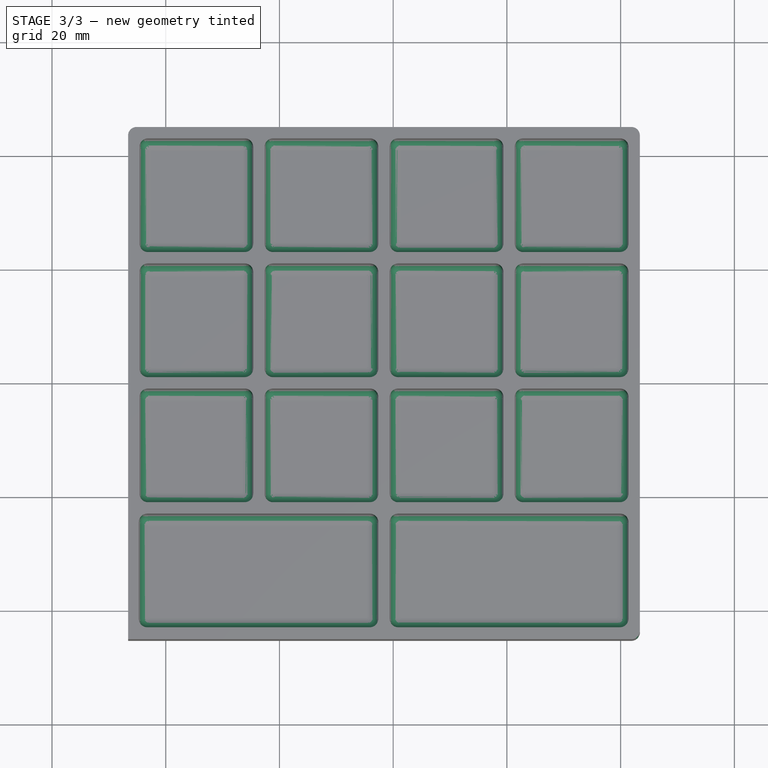
[diagram: stage 3 of 3 — top view after this stage's code; geometry added in this stage tinted green]
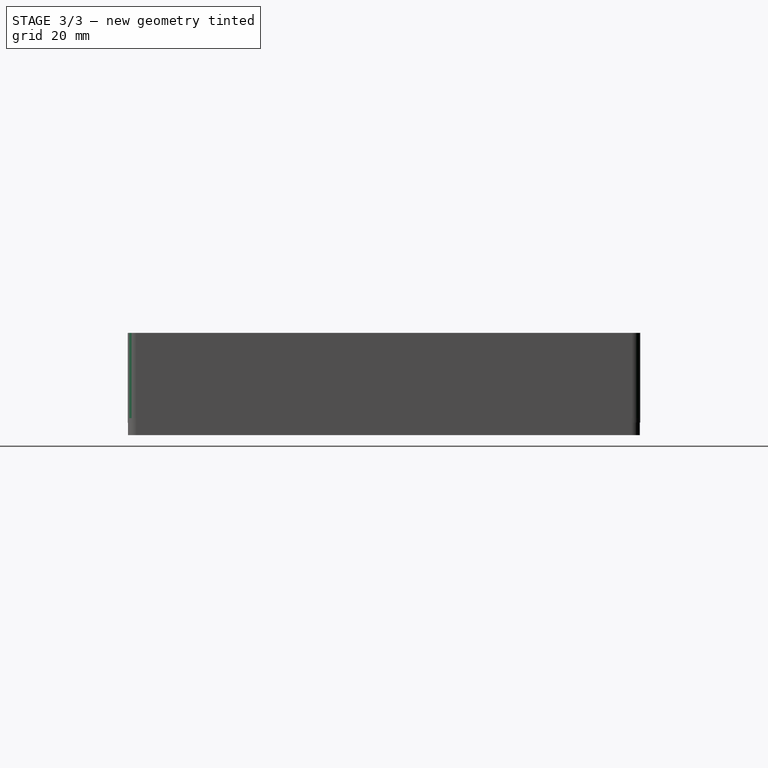
[diagram: stage 3 of 3 — right view after this stage's code; geometry added in this stage tinted green]
FEATURE [PartDesign::Fillet] Fillet
  Base = -> Pad001 [Face77,Face76,Face75,Face74,Face80,Face69,Face79,Face70,Face73,Face71,Face72,Face78,Face68,Face67]
  BaseFeature = -> Pad001
  Radius = 2
  SupportTransform = false
FEATURE [PartDesign::Fillet] Fillet001
  Base = -> Fillet [Edge77,Edge159,Edge162,Edge151,Edge154,Edge143,Edge146,Edge135,Edge78,Edge138,Edge157,Edge103,Edge160,Edge149,Edge106,Edge175,Edge152,Edge141,Edge178,Edge95,Edge144,Edge133,Edge98,Edge183,Edge136,Edge186,Edge101,Edge127,Edge104,Edge173,Edge130,Edge111,Edge176,Edge93,Edge114,Edge119,Edge96,Edge181,Edge122,Edge167,+19 more]
  BaseFeature = -> Fillet
  Radius = 1.5
  SupportTransform = false
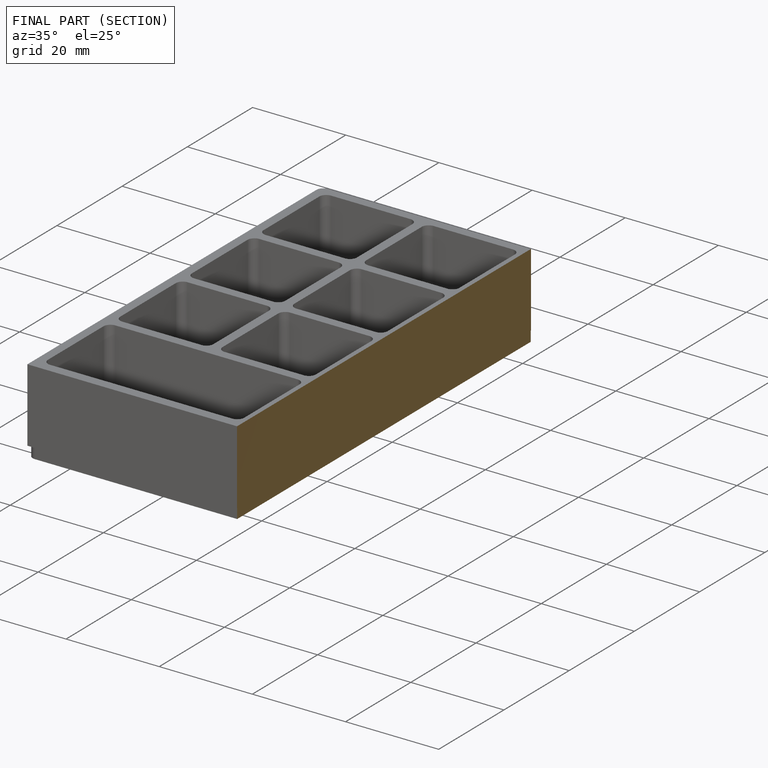
[diagram: finished part — half-section view (interior)]
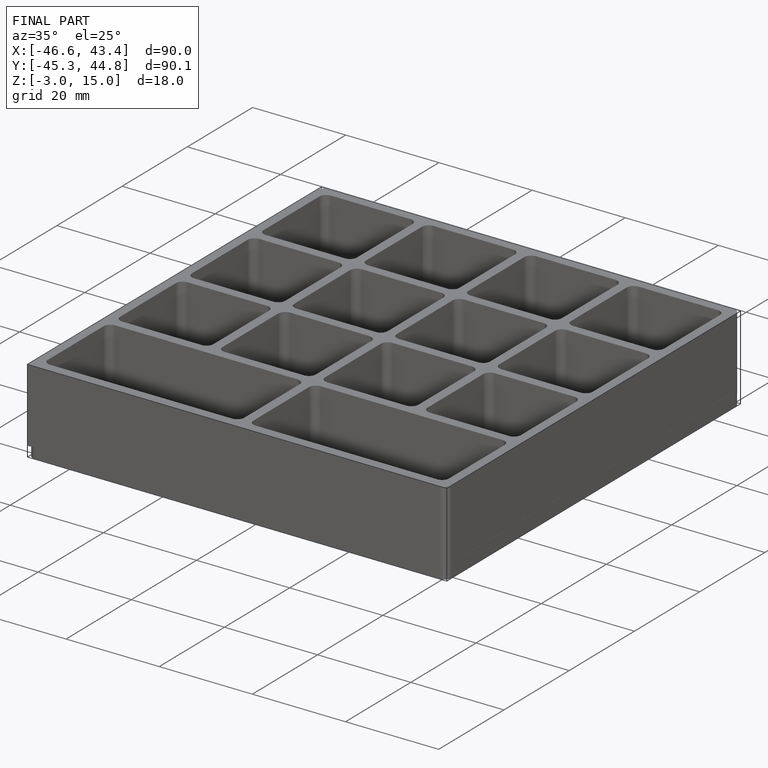
[diagram: finished part — iso view with bounding-box wireframe]
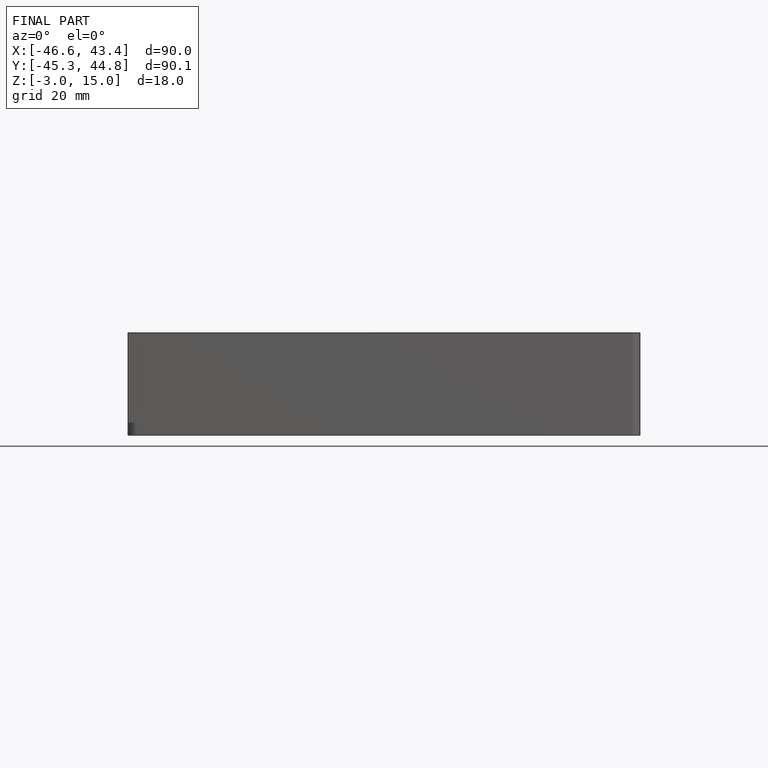
[diagram: finished part — front view with bounding-box wireframe]
